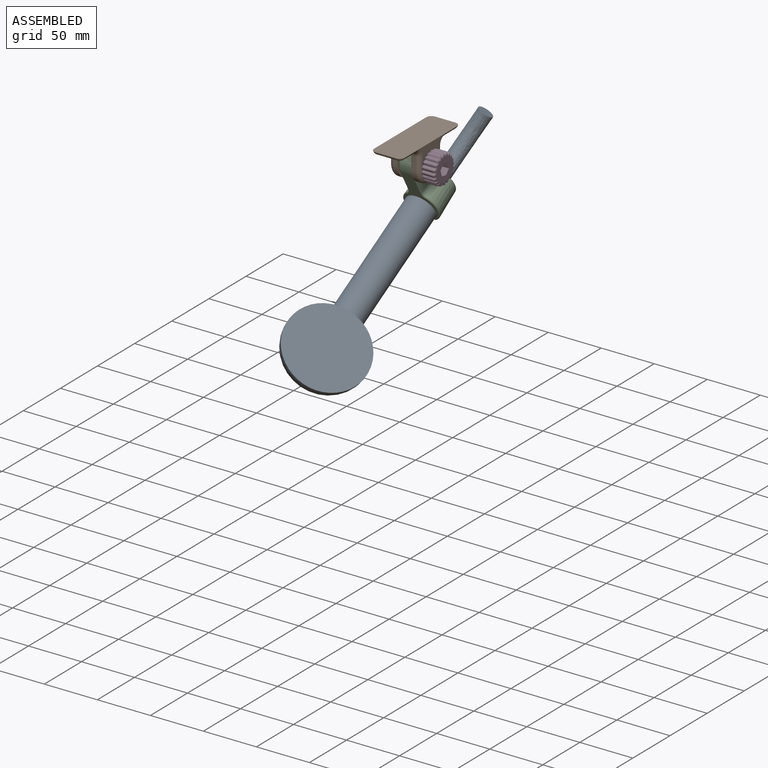
[diagram: assembled view]
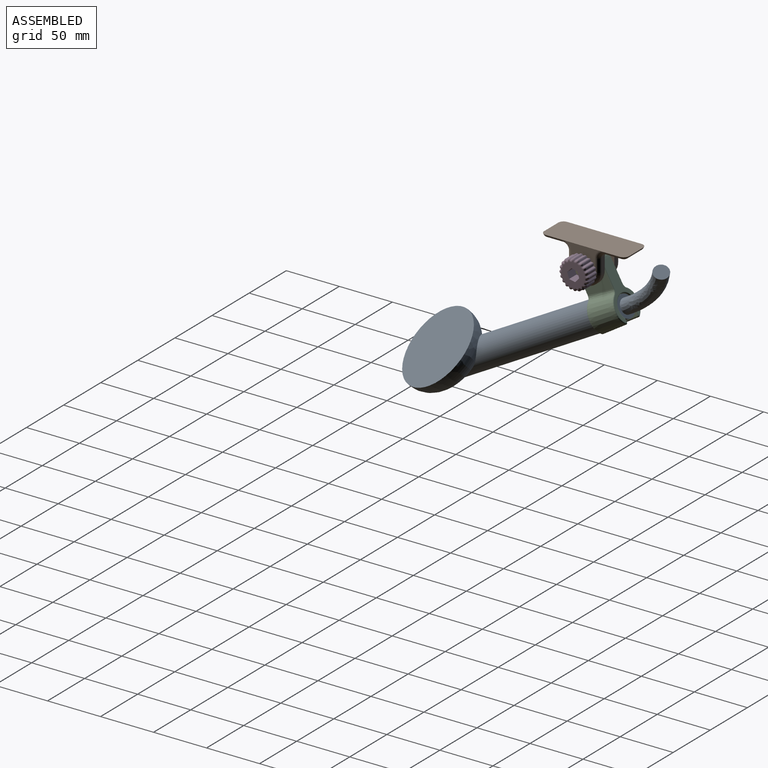
[diagram: assembled view, second angle]
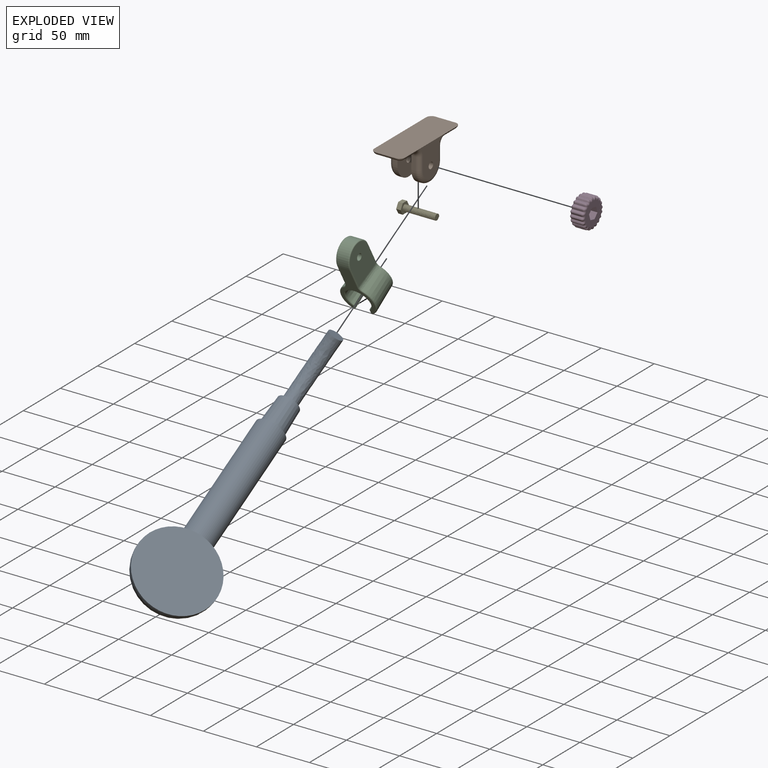
[diagram: exploded view]
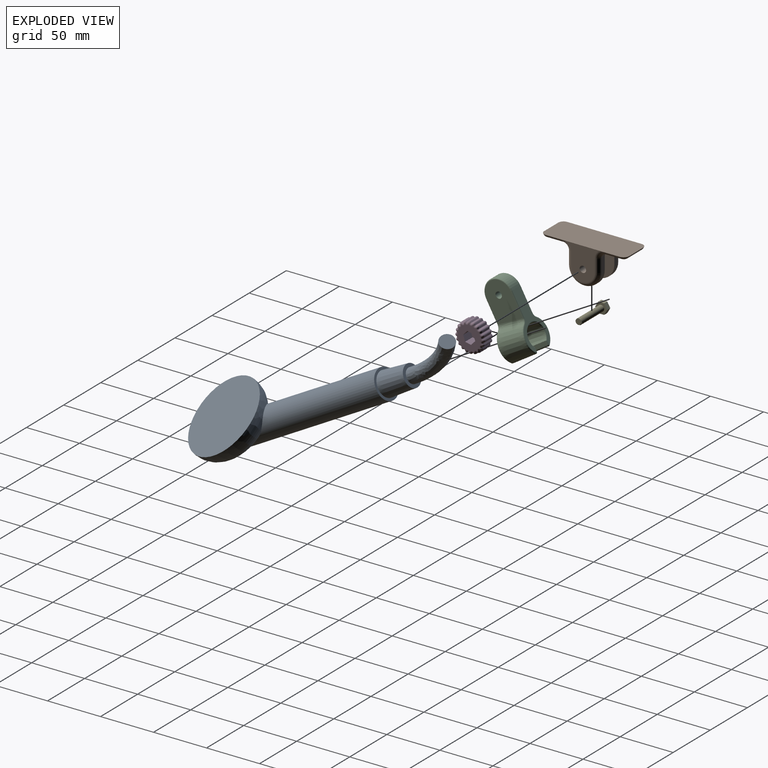
[diagram: exploded view, second angle]
ASSEMBLY  parts=5 mates=4
PART A: 12 faces, bbox 42.4x74.2x285.6 mm
  f0: cylinder r=13.79mm len=156mm, axis (0,0,-1), area 11908.2mm2, adj f5,f7,f8,f10,f11
  f1: cone r=10.15mm half-angle=2.4deg, axis (0,0,1), area 1857mm2, adj f2,f5
  f2: plane 20.3x20.3mm, normal (0,0,-1), area 174.1mm2, adj f1,f4
  f3: plane 13.8x9.81mm, normal (0.7,0,-0.71), area 149.6mm2, adj f4
  f4: bspline ~64.97x35.86mm, area 2879.1mm2, adj f2,f3
  f5: plane 27.57x27.57mm, normal (0,0,-1), area 194.2mm2, adj f0,f1
  f6: cylinder r=37.11mm len=74.23mm, axis (-1,0,0), area 460.1mm2, adj f9,f10
  f7: cone r=23.31mm half-angle=53.7deg, axis (1,0,0), area 150.2mm2, adj f0,f8,f11
  f8: sphere r=13.79mm, area 115.6mm2, adj f0,f7
  f9: plane 74.23x74.23mm, normal (1,0,0), area 4327mm2, adj f6
  f10: torus R=16.59mm, axis (-1,0,0), area 4117.8mm2, adj f0,f6,f11
  f11: torus R=137.46mm, axis (-1,0,0), area 1734.9mm2, adj f0,f7,f10
PART B: 49 faces, bbox 30.4x80.1x39.8 mm
  f0: plane 31.75x31mm, normal (-1,0,0), area 564.1mm2, adj f8,f18,f19,f20,f21,f22,f23,f40
  f1: cylinder r=3.05mm len=6.1mm, axis (-1,0,0), area 69mm2, adj f3,f24
  f2: plane 31.75x31mm, normal (1,0,0), area 623.2mm2, adj f8,f12,f25,f27,f29,f31,f33
  f3: plane 40x32mm, normal (1,0,0), area 844.9mm2, adj f1,f7,f9,f10,f13,f16,f17
  f4: plane 12x4mm, normal (0,-1,0), area 48mm2, adj f6,f11,f15,f27
  f5: plane 12x4mm, normal (0,1,0), area 48mm2, adj f6,f11,f14,f31
  f6: plane 40x32mm, normal (-1,0,0), area 844.9mm2, adj f4,f5,f7,f11,f12,f14,f15
  f7: plane 72.25x21.25mm, normal (0,0,1), area 1204.4mm2, adj f3,f6,f14,f15,f16,f17,f28,f30
  f8: plane 80.13x29.13mm, normal (0,0,-1), area 2298.5mm2, adj f0,f2,f26,f28,f30,f32,f34,f35
  f9: plane 12x4mm, normal (0,-1,0), area 48mm2, adj f3,f13,f16,f42
  f10: plane 12x4mm, normal (0,1,0), area 48mm2, adj f3,f13,f17,f46
  f11: cylinder r=15mm len=30mm, axis (-1,0,0), area 188.5mm2, adj f4,f5,f6,f29
  f12: cylinder r=3.05mm len=8mm, axis (-1,0,0), area 153.3mm2, adj f2,f6
  f13: cylinder r=15mm len=30mm, axis (-1,0,0), area 188.5mm2, adj f3,f9,f10,f44
  f14: cylinder r=5mm len=5mm, axis (-1,0,0), area 31.6mm2, adj f5,f6,f7,f33,f35
  f15: cylinder r=5mm len=5mm, axis (1,0,0), area 31.6mm2, adj f4,f6,f7,f25,f26
  f16: cylinder r=5mm len=5mm, axis (1,0,0), area 31.6mm2, adj f3,f7,f9,f38,f40
  f17: cylinder r=5mm len=5mm, axis (-1,0,0), area 31.6mm2, adj f3,f7,f10,f47,f48
  f18: plane 5.83x4.4mm, normal (0,0,1), area 25.7mm2, adj f0,f19,f23,f24
  f19: plane 5.05x4.4mm, normal (0,0.87,0.5), area 25.7mm2, adj f0,f18,f20,f24
  f20: plane 5.05x4.4mm, normal (0,0.87,-0.5), area 25.7mm2, adj f0,f19,f21,f24
  f21: plane 5.83x4.4mm, normal (0,0,-1), area 25.7mm2, adj f0,f20,f22,f24
  f22: plane 5.05x4.4mm, normal (0,-0.87,-0.5), area 25.7mm2, adj f0,f21,f23,f24
  f23: plane 5.05x4.4mm, normal (0,-0.87,0.5), area 25.7mm2, adj f0,f18,f22,f24
  f24: plane 11.66x10.1mm, normal (-1,0,0), area 59.1mm2, adj f1,f18,f19,f20,f21,f22,f23
  f25: torus R=9mm, axis (1,0,0), area 44.4mm2, adj f2,f15,f26,f27
  f26: bspline ~5.77x4.64mm, area 16.5mm2, adj f8,f15,f25,f28
  f27: cylinder r=4mm len=12mm, axis (0,0,-1), area 75.4mm2, adj f2,f4,f25,f29
  f28: cylinder r=4mm len=15mm, axis (0,-1,0), area 79.1mm2, adj f7,f8,f26,f30
  f29: torus R=11mm, axis (1,0,0), area 267.4mm2, adj f2,f11,f27,f31
  f30: torus R=1.13mm, axis (0,0,-1), area 28.2mm2, adj f7,f8,f28,f32
  f31: cylinder r=4mm len=12mm, axis (0,0,1), area 75.4mm2, adj f2,f5,f29,f33
  f32: cylinder r=4mm len=19mm, axis (-1,0,0), area 100.2mm2, adj f7,f8,f30,f34
  f33: torus R=9mm, axis (1,0,0), area 44.4mm2, adj f2,f14,f31,f35
  f34: torus R=1.13mm, axis (0,0,-1), area 28.2mm2, adj f7,f8,f32,f36
  f35: bspline ~5.77x4.64mm, area 16.5mm2, adj f8,f14,f33,f37
  f36: cylinder r=4mm len=15mm, axis (0,-1,0), area 79.1mm2, adj f7,f8,f34,f38
  f37: cylinder r=4mm len=15mm, axis (0,-1,0), area 79.1mm2, adj f7,f8,f35,f39
  f38: bspline ~5.77x4.64mm, area 16.5mm2, adj f8,f16,f36,f40
  f39: torus R=1.13mm, axis (0,0,-1), area 28.2mm2, adj f7,f8,f37,f41
  f40: torus R=9mm, axis (1,0,0), area 44.4mm2, adj f0,f16,f38,f42
  f41: cylinder r=4mm len=19mm, axis (-1,0,0), area 100.2mm2, adj f7,f8,f39,f43
  f42: cylinder r=4mm len=12mm, axis (0,0,-1), area 75.4mm2, adj f0,f9,f40,f44
  f43: torus R=1.13mm, axis (0,0,-1), area 28.2mm2, adj f7,f8,f41,f45
  f44: torus R=11mm, axis (1,0,0), area 267.4mm2, adj f0,f13,f42,f46
  f45: cylinder r=4mm len=15mm, axis (0,-1,0), area 79.1mm2, adj f7,f8,f43,f47
  f46: cylinder r=4mm len=12mm, axis (0,0,1), area 75.4mm2, adj f0,f10,f44,f48
  f47: bspline ~5.77x4.64mm, area 16.5mm2, adj f8,f17,f45,f48
  f48: torus R=9mm, axis (1,0,0), area 44.4mm2, adj f0,f17,f46,f47
PART C: 39 faces, bbox 70.4x35.8x53.5 mm
  f0: plane 51.43x28.67mm, normal (0,0,-1), area 467.2mm2, adj f7,f27,f29,f30,f31,f32,f33,f34
  f1: cone r=16.56mm half-angle=2.6deg, axis (0,0,1), area 799.8mm2, adj f12,f14,f22,f34
  f2: cone r=10.29mm half-angle=2.6deg, axis (0,0,1), area 1363.5mm2, adj f9,f10,f15,f16,f18,f37
  f3: plane 52.89x31.03mm, normal (0,0,1), area 478mm2, adj f7,f15,f16,f17,f18,f19,f20,f21
  f4: cone r=16.56mm half-angle=2.6deg, axis (0,0,1), area 799.8mm2, adj f11,f13,f19,f31
  f5: plane 35.99x25.8mm, normal (0,-1,0), area 809.7mm2, adj f8,f11,f23,f25,f27
  f6: plane 35.99x25.8mm, normal (0,1,0), area 809.7mm2, adj f8,f12,f26,f28,f30
  f7: cylinder r=13.9mm len=27.8mm, axis (0,1,0), area 462.9mm2, adj f0,f3,f25,f28
  f8: cylinder r=3.05mm len=12.6mm, axis (0,1,0), area 241.5mm2, adj f5,f6
  f9: plane 25.8x5.22mm, normal (0,-1,0), area 95.3mm2, adj f2,f14,f18,f37,f38
  f10: plane 25.8x5.22mm, normal (0,1,0), area 95.3mm2, adj f2,f13,f15,f35,f37
  f11: bspline ~53.5x7mm, area 129.3mm2, adj f4,f5,f21,f29
  f12: bspline ~53.5x7mm, area 129.3mm2, adj f1,f6,f24,f32
  f13: bspline ~37.4x4.53mm, area 73.7mm2, adj f4,f10,f17,f33
  f14: bspline ~37.4x4.53mm, area 73.7mm2, adj f1,f9,f20,f36
  f15: cylinder r=1mm len=3.64mm, axis (-1,0,0), area 5.4mm2, adj f2,f3,f10,f16,f17
  f16: torus R=12.52mm, axis (0,0,-1), area 88.5mm2, adj f2,f3,f15,f18
  f17: bspline ~2.28x1.65mm, area 3.3mm2, adj f3,f13,f15,f19
  f18: cylinder r=1mm len=3.64mm, axis (1,0,0), area 5.4mm2, adj f2,f3,f9,f16,f20
  f19: torus R=15.52mm, axis (0,0,-1), area 52mm2, adj f3,f4,f17,f21
  f20: bspline ~2.28x1.43mm, area 3.3mm2, adj f3,f14,f18,f22
  f21: bspline ~6.64x3.64mm, area 8.7mm2, adj f3,f11,f19,f23
  f22: torus R=15.52mm, axis (0,0,-1), area 52mm2, adj f1,f3,f20,f24
  f23: cylinder r=1mm len=21.68mm, axis (1,0,0), area 34.1mm2, adj f3,f5,f21,f25
  f24: bspline ~7.04x4.4mm, area 8.7mm2, adj f3,f12,f22,f26
  f25: torus R=12.9mm, axis (0,-1,0), area 66.8mm2, adj f5,f7,f23,f27
  f26: cylinder r=1mm len=21.68mm, axis (-1,0,0), area 34.1mm2, adj f3,f6,f24,f28
  f27: cylinder r=1mm len=23.09mm, axis (-1,0,0), area 36.3mm2, adj f0,f5,f25,f29
  f28: torus R=12.9mm, axis (0,-1,0), area 66.8mm2, adj f6,f7,f26,f30
  f29: bspline ~6.97x4.22mm, area 8.2mm2, adj f0,f11,f27,f31
  f30: cylinder r=1mm len=23.09mm, axis (1,0,0), area 36.3mm2, adj f0,f6,f28,f32
  f31: torus R=14.33mm, axis (0,0,1), area 43.3mm2, adj f0,f4,f29,f33
  f32: bspline ~6.97x4.22mm, area 8.2mm2, adj f0,f12,f30,f34
  f33: bspline ~2.31x1.37mm, area 3.2mm2, adj f0,f13,f31,f35
  f34: torus R=14.33mm, axis (0,0,1), area 43.3mm2, adj f0,f1,f32,f36
  f35: cylinder r=1mm len=3.76mm, axis (-1,0,0), area 5.6mm2, adj f0,f10,f33,f37
  f36: bspline ~2.31x1.59mm, area 3.2mm2, adj f0,f14,f34,f38
  f37: torus R=11.33mm, axis (0,0,1), area 81.2mm2, adj f0,f2,f9,f10,f35,f38
  f38: cylinder r=1mm len=3.76mm, axis (1,0,0), area 5.6mm2, adj f0,f9,f36,f37
PART D: 150 faces, bbox 27.7x27.7x13 mm
  f0: extruded ~9x4.17mm, area 45.3mm2, adj f23,f25,f40,f69,f72,f102,f133,f136
  f1: extruded ~9x4.17mm, area 45.3mm2, adj f3,f22,f46,f81,f84,f108,f145,f148
  f2: plane 10x5mm, normal (0.5,-0.87,0), area 57.7mm2, adj f4,f26,f27,f28
  f3: extruded ~9x4.38mm, area 45.3mm2, adj f1,f5,f48,f85,f88,f109,f146,f149
  f4: plane 10x5mm, normal (-0.5,-0.87,0), area 57.7mm2, adj f2,f8,f26,f27
  f5: extruded ~9x4.17mm, area 45.3mm2, adj f3,f6,f49,f86,f89,f107,f142,f147
  f6: extruded ~9x3.54mm, area 45.3mm2, adj f5,f7,f47,f82,f87,f105,f138,f143
  f7: extruded ~9x3.54mm, area 45.3mm2, adj f6,f9,f45,f78,f83,f103,f134,f139
  f8: plane 10x5.77mm, normal (-1,0,0), area 57.7mm2, adj f4,f13,f26,f27
  f9: extruded ~9x4.17mm, area 45.3mm2, adj f7,f10,f43,f74,f79,f101,f130,f135
  f10: extruded ~9x4.38mm, area 45.3mm2, adj f9,f11,f41,f70,f75,f99,f126,f131
  f11: extruded ~9x4.17mm, area 45.3mm2, adj f10,f12,f39,f66,f71,f97,f122,f127
  f12: extruded ~9x3.54mm, area 45.3mm2, adj f11,f14,f37,f62,f67,f95,f118,f123
  f13: plane 10x5mm, normal (-0.5,0.87,0), area 57.7mm2, adj f8,f17,f26,f27
  f14: extruded ~9x3.54mm, area 45.3mm2, adj f12,f15,f35,f58,f63,f93,f114,f119
  f15: extruded ~9x4.17mm, area 45.3mm2, adj f14,f16,f33,f54,f59,f91,f110,f115
  f16: extruded ~9x4.38mm, area 45.3mm2, adj f15,f18,f31,f50,f55,f90,f111,f112
  f17: plane 10x5mm, normal (0.5,0.87,0), area 57.7mm2, adj f13,f26,f27,f28
  f18: extruded ~9x4.17mm, area 45.3mm2, adj f16,f21,f30,f51,f52,f92,f113,f116
  f19: extruded ~9x3.54mm, area 45.3mm2, adj f20,f21,f34,f57,f60,f96,f121,f124
  f20: extruded ~9x4.17mm, area 45.3mm2, adj f19,f25,f36,f61,f64,f98,f125,f128
  f21: extruded ~9x3.54mm, area 45.3mm2, adj f18,f19,f32,f53,f56,f94,f117,f120
  f22: extruded ~9x3.54mm, area 45.3mm2, adj f1,f23,f44,f77,f80,f106,f141,f144
  f23: extruded ~9x3.54mm, area 45.3mm2, adj f0,f22,f42,f73,f76,f104,f137,f140
  f24: plane 23.76x23.76mm, normal (0,0,-1), area 363.2mm2, adj f29,f90,f91,f92,f93,f94,f95,f96
  f25: extruded ~9x4.38mm, area 45.3mm2, adj f0,f20,f38,f65,f68,f100,f129,f132
  f26: plane 23.76x23.76mm, normal (0,0,1), area 304.9mm2, adj f2,f4,f8,f13,f17,f28,f30,f31
  f27: plane 11.55x10mm, normal (0,0,1), area 58.3mm2, adj f2,f4,f8,f13,f17,f28,f29
  f28: plane 10x5.77mm, normal (1,0,0), area 57.7mm2, adj f2,f17,f26,f27
  f29: cylinder r=3mm len=6mm, axis (0,0,-1), area 56.5mm2, adj f24,f27
  f30: bspline ~2.68x2.25mm, area 3.6mm2, adj f18,f26,f51,f52
  f31: bspline ~2.84x2.13mm, area 3.6mm2, adj f16,f26,f50,f55
  f32: bspline ~2.39x2.38mm, area 3.6mm2, adj f21,f26,f53,f56
  f33: bspline ~2.72x2.21mm, area 3.6mm2, adj f15,f26,f54,f59
  f34: bspline ~2.38x2.34mm, area 3.6mm2, adj f19,f26,f57,f60
  f35: bspline ~2.37x2.36mm, area 3.6mm2, adj f14,f26,f58,f63
  f36: bspline ~2.72x2.21mm, area 3.6mm2, adj f20,f26,f61,f64
  f37: bspline ~2.39x2.38mm, area 3.6mm2, adj f12,f26,f62,f67
  f38: bspline ~2.84x2.13mm, area 3.6mm2, adj f25,f26,f65,f68
  f39: bspline ~2.68x2.25mm, area 3.6mm2, adj f11,f26,f66,f71
  f40: bspline ~2.47x2.18mm, area 3.6mm2, adj f0,f26,f69,f72
  f41: bspline ~2.84x2.13mm, area 3.6mm2, adj f10,f26,f70,f75
  f42: bspline ~2.39x2.38mm, area 3.6mm2, adj f23,f26,f73,f76
  f43: bspline ~2.72x2.21mm, area 3.6mm2, adj f9,f26,f74,f79
  f44: bspline ~2.38x2.35mm, area 3.6mm2, adj f22,f26,f77,f80
  f45: bspline ~2.38x2.35mm, area 3.6mm2, adj f7,f26,f78,f83
  f46: bspline ~2.72x2.21mm, area 3.6mm2, adj f1,f26,f81,f84
  f47: bspline ~2.34x2.32mm, area 3.6mm2, adj f6,f26,f82,f87
  f48: bspline ~2.84x2.13mm, area 3.6mm2, adj f3,f26,f85,f88
  f49: bspline ~2.68x2.25mm, area 3.6mm2, adj f5,f26,f86,f89
  f50: bspline ~2.79x2mm, area 5.6mm2, adj f16,f26,f31,f51
  f51: bspline ~2.96x2mm, area 5.6mm2, adj f18,f26,f30,f50
  f52: bspline ~2.46x2.18mm, area 5.6mm2, adj f18,f26,f30,f53
  f53: bspline ~2.86x2mm, area 5.6mm2, adj f21,f26,f32,f52
  f54: bspline ~2.96x2mm, area 5.6mm2, adj f15,f26,f33,f55
  f55: bspline ~2.79x2mm, area 5.6mm2, adj f16,f26,f31,f54
  f56: bspline ~2.48x2.03mm, area 5.6mm2, adj f21,f26,f32,f57
  f57: bspline ~2.48x2.03mm, area 5.6mm2, adj f19,f26,f34,f56
  f58: bspline ~2.86x2mm, area 5.6mm2, adj f14,f26,f35,f59
  f59: bspline ~2.46x2.18mm, area 5.6mm2, adj f15,f26,f33,f58
  f60: bspline ~2.86x2mm, area 5.6mm2, adj f19,f26,f34,f61
  f61: bspline ~2.46x2.18mm, area 5.6mm2, adj f20,f26,f36,f60
  f62: bspline ~2.48x2.03mm, area 5.6mm2, adj f12,f26,f37,f63
  f63: bspline ~2.48x2.03mm, area 5.6mm2, adj f14,f26,f35,f62
  f64: bspline ~2.96x2mm, area 5.6mm2, adj f20,f26,f36,f65
  f65: bspline ~2.79x2mm, area 5.6mm2, adj f25,f26,f38,f64
  f66: bspline ~2.46x2.18mm, area 5.6mm2, adj f11,f26,f39,f67
  f67: bspline ~2.86x2mm, area 5.6mm2, adj f12,f26,f37,f66
  f68: bspline ~2.79x2mm, area 5.6mm2, adj f25,f26,f38,f69
  f69: bspline ~2.96x2mm, area 5.6mm2, adj f0,f26,f40,f68
  f70: bspline ~2.79x2mm, area 5.6mm2, adj f10,f26,f41,f71
  f71: bspline ~2.96x2mm, area 5.6mm2, adj f11,f26,f39,f70
  f72: bspline ~2.46x2.18mm, area 5.6mm2, adj f0,f26,f40,f73
  f73: bspline ~2.86x2mm, area 5.6mm2, adj f23,f26,f42,f72
  f74: bspline ~2.96x2mm, area 5.6mm2, adj f9,f26,f43,f75
  f75: bspline ~2.79x2mm, area 5.6mm2, adj f10,f26,f41,f74
  f76: bspline ~2.48x2.03mm, area 5.6mm2, adj f23,f26,f42,f77
  f77: bspline ~2.48x2.03mm, area 5.6mm2, adj f22,f26,f44,f76
  f78: bspline ~2.86x2mm, area 5.6mm2, adj f7,f26,f45,f79
  f79: bspline ~2.46x2.18mm, area 5.6mm2, adj f9,f26,f43,f78
  f80: bspline ~2.86x2mm, area 5.6mm2, adj f22,f26,f44,f81
  f81: bspline ~2.46x2.18mm, area 5.6mm2, adj f1,f26,f46,f80
  f82: bspline ~2.48x2.03mm, area 5.6mm2, adj f6,f26,f47,f83
  f83: bspline ~2.48x2.03mm, area 5.6mm2, adj f7,f26,f45,f82
  f84: bspline ~2.96x2mm, area 5.6mm2, adj f1,f26,f46,f85
  f85: bspline ~2.79x2mm, area 5.6mm2, adj f3,f26,f48,f84
  f86: bspline ~2.46x2.18mm, area 5.6mm2, adj f5,f26,f49,f87
  f87: bspline ~2.86x2mm, area 5.6mm2, adj f6,f26,f47,f86
  f88: bspline ~2.79x2mm, area 5.6mm2, adj f3,f26,f48,f89
  f89: bspline ~2.96x2mm, area 5.6mm2, adj f5,f26,f49,f88
  f90: bspline ~2.84x2.13mm, area 3.6mm2, adj f16,f24,f111,f112
  f91: bspline ~2.72x2.21mm, area 3.6mm2, adj f15,f24,f110,f115
  f92: bspline ~2.68x2.25mm, area 3.6mm2, adj f18,f24,f113,f116
  f93: bspline ~2.38x2.34mm, area 3.6mm2, adj f14,f24,f114,f119
  f94: bspline ~2.39x2.38mm, area 3.6mm2, adj f21,f24,f117,f120
  f95: bspline ~2.36x2.34mm, area 3.6mm2, adj f12,f24,f118,f123
  f96: bspline ~2.38x2.35mm, area 3.6mm2, adj f19,f24,f121,f124
  f97: bspline ~2.68x2.25mm, area 3.6mm2, adj f11,f24,f122,f127
  f98: bspline ~2.72x2.2mm, area 3.6mm2, adj f20,f24,f125,f128
  f99: bspline ~2.84x2.13mm, area 3.6mm2, adj f10,f24,f126,f131
  f100: bspline ~2.59x2.09mm, area 3.6mm2, adj f24,f25,f129,f132
  f101: bspline ~2.72x2.21mm, area 3.6mm2, adj f9,f24,f130,f135
  f102: bspline ~2.68x2.25mm, area 3.6mm2, adj f0,f24,f133,f136
  f103: bspline ~2.38x2.35mm, area 3.6mm2, adj f7,f24,f134,f139
  f104: bspline ~2.39x2.38mm, area 3.6mm2, adj f23,f24,f137,f140
  f105: bspline ~2.39x2.38mm, area 3.6mm2, adj f6,f24,f138,f143
  f106: bspline ~2.38x2.35mm, area 3.6mm2, adj f22,f24,f141,f144
  f107: bspline ~2.58x2.2mm, area 3.6mm2, adj f5,f24,f142,f147
  f108: bspline ~2.72x2.21mm, area 3.6mm2, adj f1,f24,f145,f148
  f109: bspline ~2.84x2.13mm, area 3.6mm2, adj f3,f24,f146,f149
  f110: bspline ~2.96x2mm, area 5.6mm2, adj f15,f24,f91,f111
  f111: bspline ~2.79x2mm, area 5.6mm2, adj f16,f24,f90,f110
  f112: bspline ~2.79x2mm, area 5.6mm2, adj f16,f24,f90,f113
  f113: bspline ~2.96x2mm, area 5.6mm2, adj f18,f24,f92,f112
  f114: bspline ~2.86x2mm, area 5.6mm2, adj f14,f24,f93,f115
  f115: bspline ~2.46x2.18mm, area 5.6mm2, adj f15,f24,f91,f114
  f116: bspline ~2.46x2.18mm, area 5.6mm2, adj f18,f24,f92,f117
  f117: bspline ~2.86x2mm, area 5.6mm2, adj f21,f24,f94,f116
  f118: bspline ~2.48x2.03mm, area 5.6mm2, adj f12,f24,f95,f119
  f119: bspline ~2.48x2.03mm, area 5.6mm2, adj f14,f24,f93,f118
  f120: bspline ~2.48x2.03mm, area 5.6mm2, adj f21,f24,f94,f121
  f121: bspline ~2.48x2.03mm, area 5.6mm2, adj f19,f24,f96,f120
  f122: bspline ~2.46x2.18mm, area 5.6mm2, adj f11,f24,f97,f123
  f123: bspline ~2.86x2mm, area 5.6mm2, adj f12,f24,f95,f122
  f124: bspline ~2.86x2mm, area 5.6mm2, adj f19,f24,f96,f125
  f125: bspline ~2.46x2.18mm, area 5.6mm2, adj f20,f24,f98,f124
  f126: bspline ~2.79x2mm, area 5.6mm2, adj f10,f24,f99,f127
  f127: bspline ~2.96x2mm, area 5.6mm2, adj f11,f24,f97,f126
  f128: bspline ~2.96x2mm, area 5.6mm2, adj f20,f24,f98,f129
  f129: bspline ~2.79x2mm, area 5.6mm2, adj f24,f25,f100,f128
  f130: bspline ~2.96x2mm, area 5.6mm2, adj f9,f24,f101,f131
  f131: bspline ~2.79x2mm, area 5.6mm2, adj f10,f24,f99,f130
  f132: bspline ~2.79x2mm, area 5.6mm2, adj f24,f25,f100,f133
  f133: bspline ~2.96x2mm, area 5.6mm2, adj f0,f24,f102,f132
  f134: bspline ~2.86x2mm, area 5.6mm2, adj f7,f24,f103,f135
  f135: bspline ~2.46x2.18mm, area 5.6mm2, adj f9,f24,f101,f134
  f136: bspline ~2.46x2.18mm, area 5.6mm2, adj f0,f24,f102,f137
  f137: bspline ~2.86x2mm, area 5.6mm2, adj f23,f24,f104,f136
  f138: bspline ~2.48x2.03mm, area 5.6mm2, adj f6,f24,f105,f139
  f139: bspline ~2.48x2.03mm, area 5.6mm2, adj f7,f24,f103,f138
  f140: bspline ~2.48x2.03mm, area 5.6mm2, adj f23,f24,f104,f141
  f141: bspline ~2.48x2.03mm, area 5.6mm2, adj f22,f24,f106,f140
  f142: bspline ~2.46x2.18mm, area 5.6mm2, adj f5,f24,f107,f143
  f143: bspline ~2.86x2mm, area 5.6mm2, adj f6,f24,f105,f142
  f144: bspline ~2.86x2mm, area 5.6mm2, adj f22,f24,f106,f145
  f145: bspline ~2.46x2.18mm, area 5.6mm2, adj f1,f24,f108,f144
  f146: bspline ~2.79x2mm, area 5.6mm2, adj f3,f24,f109,f147
  f147: bspline ~2.96x2mm, area 5.6mm2, adj f5,f24,f107,f146
  f148: bspline ~2.96x2mm, area 5.6mm2, adj f1,f24,f108,f149
  f149: bspline ~2.79x2mm, area 5.6mm2, adj f3,f24,f109,f148
PART E: 15 faces, bbox 11.2x11.4x36.1 mm
  f0: cylinder r=2.9mm len=30.33mm, axis (0,0,-1), area -54mm2, adj f1,f4,f5,f6,f14
  f1: plane 6.19x5.97mm, normal (0,0,1), area 24.5mm2, adj f0,f5,f6
  f2: plane 11.43x11.23mm, normal (0,0,-1), area 81.2mm2, adj f3,f4,f7,f8,f9,f10,f11,f12
  f3: plane 0.5x0.48mm, normal (0.23,0.97,0), area 0.1mm2, adj f2,f6,f13
  f4: bspline ~35.24x6.7mm, area 373mm2, adj f0,f2,f5,f6,f13
  f5: plane 0.5x0.49mm, normal (0,-1,0), area 0.1mm2, adj f0,f1,f4
  f6: bspline ~35.24x6.7mm, area 373.2mm2, adj f0,f1,f3,f4,f13
  f7: plane 4.27x4.14mm, normal (-0.68,-0.73,0), area 24.2mm2, adj f2,f8,f12,f14
  f8: plane 5.41x4.27mm, normal (0.29,-0.96,0), area 24.2mm2, adj f2,f7,f9,f14
  f9: plane 5.51x4.27mm, normal (0.97,-0.23,0), area 24.2mm2, adj f2,f8,f10,f14
  f10: plane 4.27x4.14mm, normal (0.68,0.73,0), area 24.2mm2, adj f2,f9,f11,f14
  f11: plane 5.41x4.27mm, normal (-0.29,0.96,0), area 24.2mm2, adj f2,f10,f12,f14
  f12: plane 5.51x4.27mm, normal (-0.97,0.23,0), area 24.2mm2, adj f2,f7,f11,f14
  f13: cylinder r=2.9mm len=5.8mm, axis (0,0,-1), area 69.4mm2, adj f2,f3,f4,f6,f14
  f14: plane 11.03x10.82mm, normal (0,0,1), area 56.8mm2, adj f0,f7,f8,f9,f10,f11,f12,f13
PLACE A rot(axis=(0.87,-0.43,0.25),126.3deg) t=(0.2,16.57,-56.57)mm
PLACE B rot(axis=(1,0,0),180deg) t=(0,0,-3)mm
PLACE C rot(axis=(0.65,0.65,-0.38),138.1deg) t=(0.2,31.69,-48.09)mm
PLACE D rot(axis=(0.38,0.85,0.38),99.5deg) t=(14.5,0,-20)mm
PLACE E rot(axis=(0.51,0.69,0.51),110.7deg) t=(-14.37,0,-20)mm
MATE revolute B.f1 <-> C.f7  axis (-1,0,0) through (6.5,0,-20)mm
MATE parallel E.f11 <-> B.f18  axis (0,0,1) through (-12.24,0,-15.1)mm
MATE revolute D.f29 <-> B.f1  axis (-1,0,0) through (14.5,0,-20)mm
MATE revolute A.f1 <-> C.f1  axis (0,-0.87,-0.49) through (0.2,30.77,-48.6)mm
